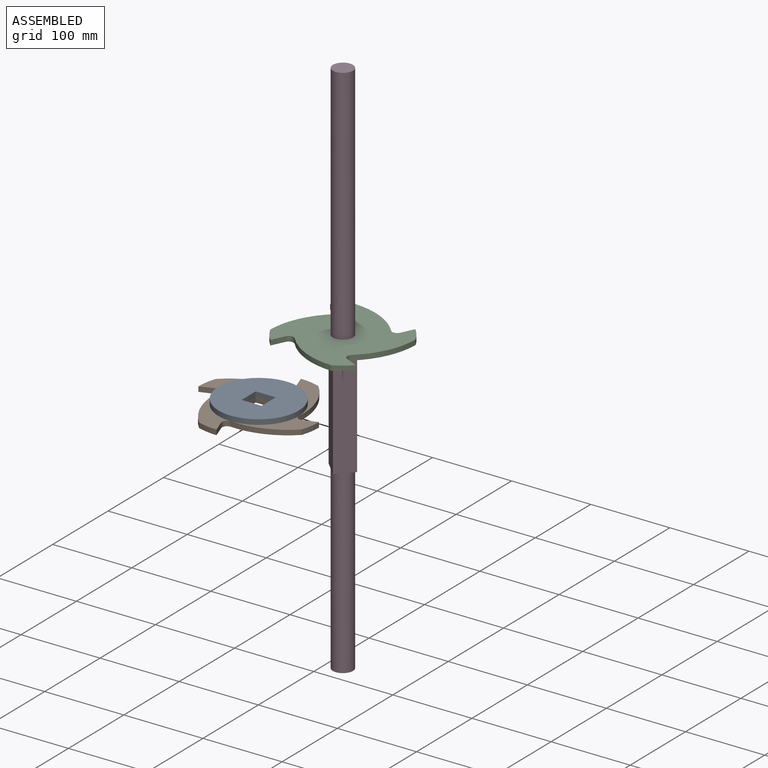
[diagram: assembled view]
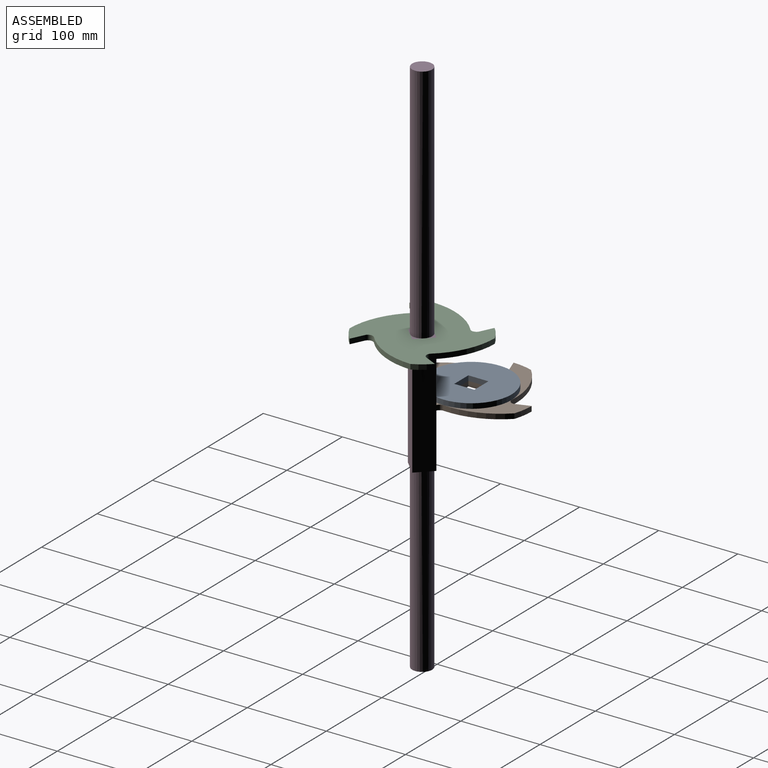
[diagram: assembled view, second angle]
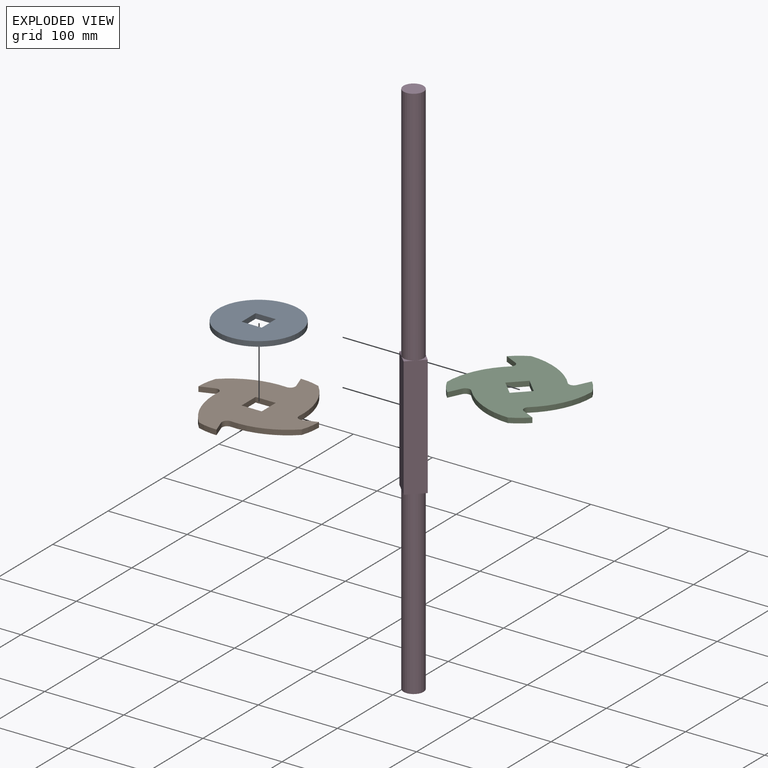
[diagram: exploded view]
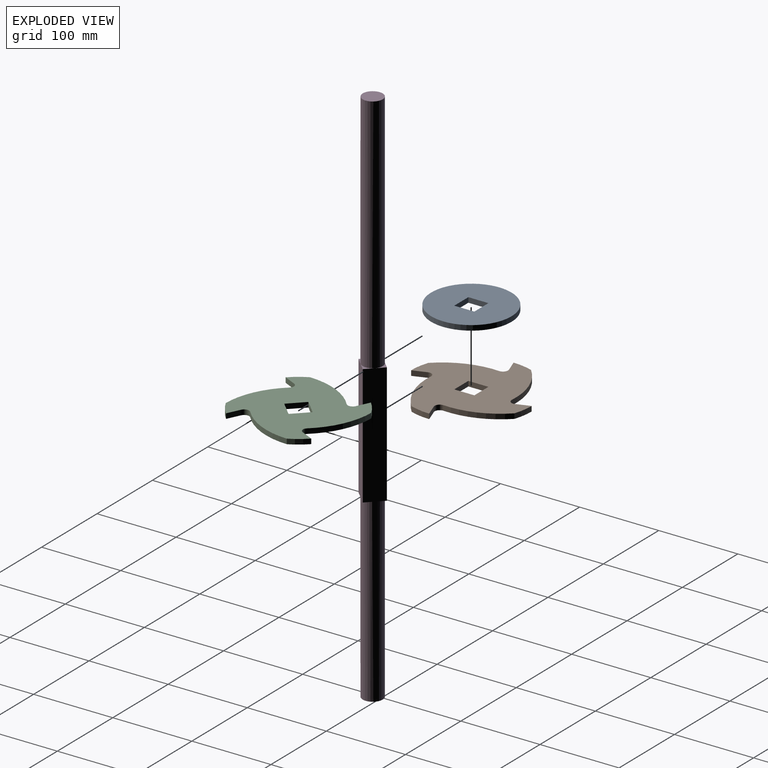
[diagram: exploded view, second angle]
ASSEMBLY  parts=4 mates=2
PART A: 7 faces, bbox 101.6x101.6x6.4 mm
  f0: plane 25.4x6.35mm, normal (0,1,0), area 161.3mm2, adj f1,f3,f5,f6
  f1: plane 25.4x6.35mm, normal (1,0,0), area 161.3mm2, adj f0,f2,f5,f6
  f2: plane 25.4x6.35mm, normal (0,-1,0), area 161.3mm2, adj f1,f3,f5,f6
  f3: plane 25.4x6.35mm, normal (-1,0,0), area 161.3mm2, adj f0,f2,f5,f6
  f4: cylinder r=50.8mm len=101.6mm, axis (0,0,-1), area 2026.8mm2, adj f5,f6
  f5: plane 101.6x101.6mm, normal (0,0,1), area 7462.2mm2, adj f0,f1,f2,f3,f4
  f6: plane 101.6x101.6mm, normal (0,0,-1), area 7462.2mm2, adj f0,f1,f2,f3,f4
PART B: 22 faces, bbox 152.4x152.4x6.4 mm
  f0: cylinder r=93.61mm len=71.97mm, axis (0,0,-1), area 500mm2, adj f1,f19,f20,f21
  f1: cylinder r=76.2mm len=25.04mm, axis (0,0,-1), area 162mm2, adj f0,f2,f20,f21
  f2: plane 16.93x6.35mm, normal (-0.33,0.94,0), area 114mm2, adj f1,f3,f20,f21
  f3: cylinder r=6.35mm len=8.47mm, axis (0,0,-1), area 77mm2, adj f2,f4,f20,f21
  f4: cylinder r=93.61mm len=71.97mm, axis (0,0,-1), area 500mm2, adj f3,f5,f20,f21
  f5: cylinder r=76.2mm len=25.04mm, axis (0,0,-1), area 162mm2, adj f4,f6,f20,f21
  f6: plane 16.93x6.35mm, normal (-0.94,-0.33,0), area 114mm2, adj f5,f7,f20,f21
  f7: cylinder r=6.35mm len=8.47mm, axis (0,0,-1), area 77mm2, adj f6,f8,f20,f21
  f8: cylinder r=93.61mm len=71.97mm, axis (0,0,-1), area 500mm2, adj f7,f9,f20,f21
  f9: cylinder r=76.2mm len=25.04mm, axis (0,0,-1), area 162mm2, adj f8,f10,f20,f21
  f10: plane 16.93x6.35mm, normal (0.33,-0.94,0), area 114mm2, adj f9,f11,f20,f21
  f11: cylinder r=6.35mm len=8.47mm, axis (0,0,-1), area 77mm2, adj f10,f12,f20,f21
  f12: cylinder r=93.61mm len=71.97mm, axis (0,0,-1), area 500mm2, adj f11,f13,f20,f21
  f13: cylinder r=76.2mm len=25.04mm, axis (0,0,-1), area 162mm2, adj f12,f14,f20,f21
  f14: plane 16.93x6.35mm, normal (0.94,0.33,0), area 114mm2, adj f13,f19,f20,f21
  f15: plane 25.4x6.35mm, normal (0,1,0), area 161.3mm2, adj f16,f18,f20,f21
  f16: plane 25.4x6.35mm, normal (1,0,0), area 161.3mm2, adj f15,f17,f20,f21
  f17: plane 25.4x6.35mm, normal (0,-1,0), area 161.3mm2, adj f16,f18,f20,f21
  f18: plane 25.4x6.35mm, normal (-1,0,0), area 161.3mm2, adj f15,f17,f20,f21
  f19: cylinder r=6.35mm len=8.47mm, axis (0,0,-1), area 77mm2, adj f0,f14,f20,f21
  f20: plane 152.4x152.4mm, normal (0,0,1), area 11851.3mm2, adj f0,f1,f2,f3,f4,f5,f6,f7
  f21: plane 152.4x152.4mm, normal (0,0,-1), area 11851.3mm2, adj f0,f1,f2,f3,f4,f5,f6,f7
PART C: same geometry as B
PART D: 16 faces, bbox 25.4x25.4x685.8 mm
  f0: plane 12.7x12.7mm, normal (0,0,1), area 34.6mm2, adj f7,f8,f14
  f1: plane 12.7x12.7mm, normal (0,0,1), area 34.6mm2, adj f6,f7,f14
  f2: plane 12.7x12.7mm, normal (0,0,1), area 34.6mm2, adj f6,f9,f14
  f3: plane 12.7x12.7mm, normal (0,0,-1), area 34.6mm2, adj f7,f8,f13
  f4: plane 12.7x12.7mm, normal (0,0,-1), area 34.6mm2, adj f6,f7,f13
  f5: plane 12.7x12.7mm, normal (0,0,-1), area 34.6mm2, adj f6,f9,f13
  f6: plane 152.4x25.4mm, normal (-1,0,0), area 3871mm2, adj f1,f2,f4,f5,f7,f9
  f7: plane 152.4x25.4mm, normal (0,-1,0), area 3871mm2, adj f0,f1,f3,f4,f6,f8
  f8: plane 152.4x25.4mm, normal (1,0,0), area 3871mm2, adj f0,f3,f7,f9,f10,f11
  f9: plane 152.4x25.4mm, normal (0,1,0), area 3871mm2, adj f2,f5,f6,f8,f10,f11
  f10: plane 12.7x12.7mm, normal (0,0,1), area 34.6mm2, adj f8,f9,f14
  f11: plane 12.7x12.7mm, normal (0,0,-1), area 34.6mm2, adj f8,f9,f13
  f12: plane 25.4x25.4mm, normal (0,0,-1), area 506.7mm2, adj f13
  f13: cylinder r=12.7mm len=228.6mm, axis (0,0,-1), area 18241.5mm2, adj f3,f4,f5,f11,f12
  f14: cylinder r=12.7mm len=304.8mm, axis (0,0,-1), area 24322mm2, adj f0,f1,f2,f10,f15
  f15: plane 25.4x25.4mm, normal (0,0,1), area 506.7mm2, adj f14
PLACE A t=(33,-3.61,3.18)mm
PLACE B t=(33,-3.61,-3.17)mm fixed
PLACE C rot(axis=(0,0,1),45deg) t=(133.65,4.66,100.14)mm
PLACE D rot(axis=(0,0,1),135deg) t=(133.65,4.66,-45.91)mm
MATE fastened B.f1 <-> A.f4  axis (0,0,1) through (33,-3.61,3.18)mm
MATE fastened D.f13 <-> C.f1  axis (0,0,-1) through (133.65,4.66,106.49)mm
